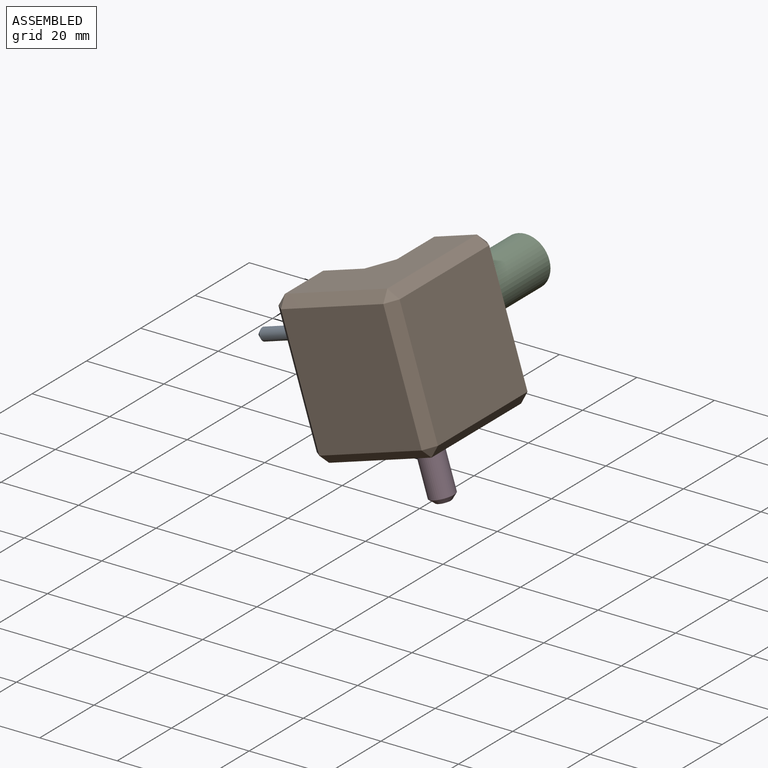
[diagram: assembled view]
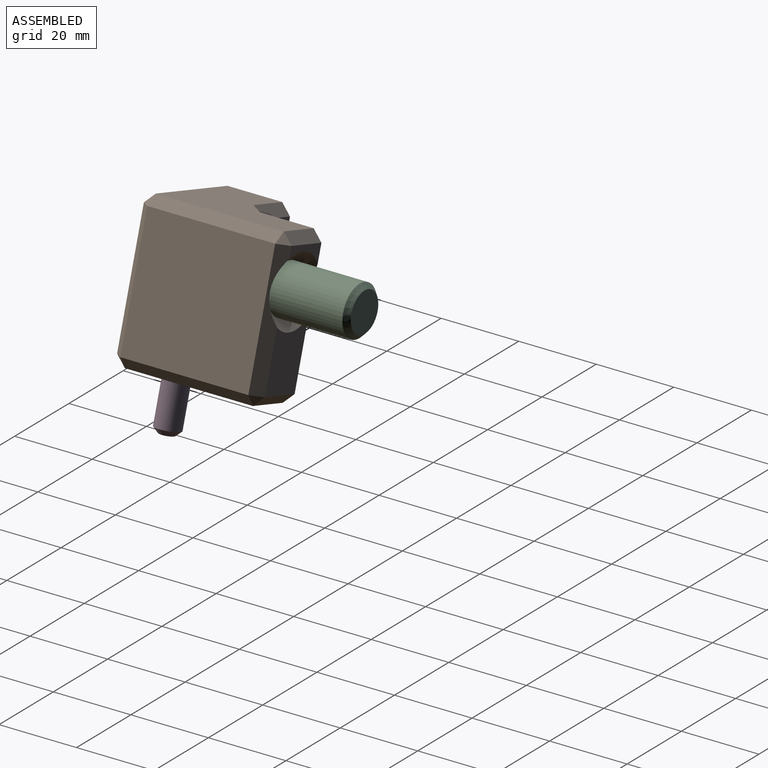
[diagram: assembled view, second angle]
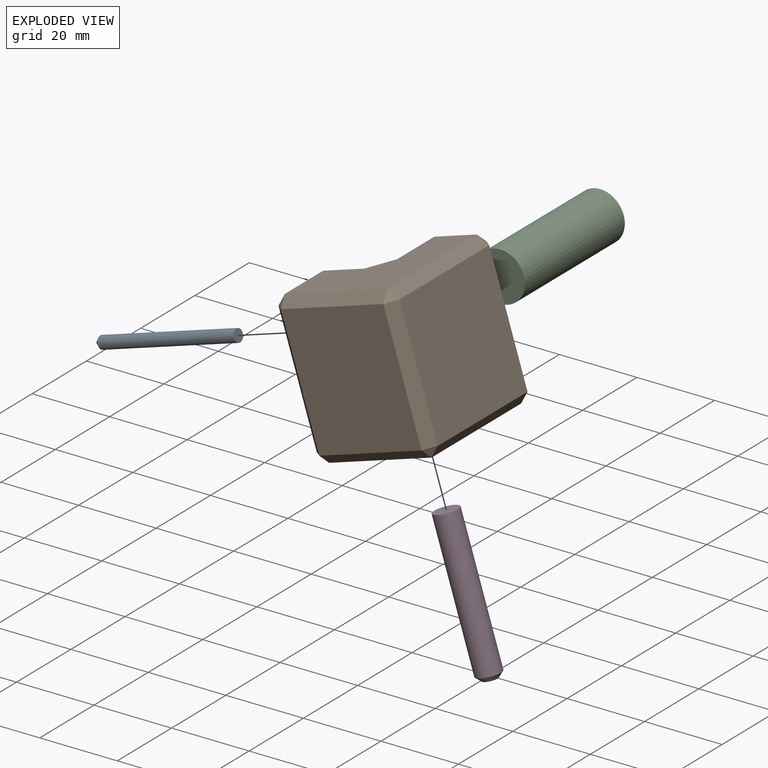
[diagram: exploded view]
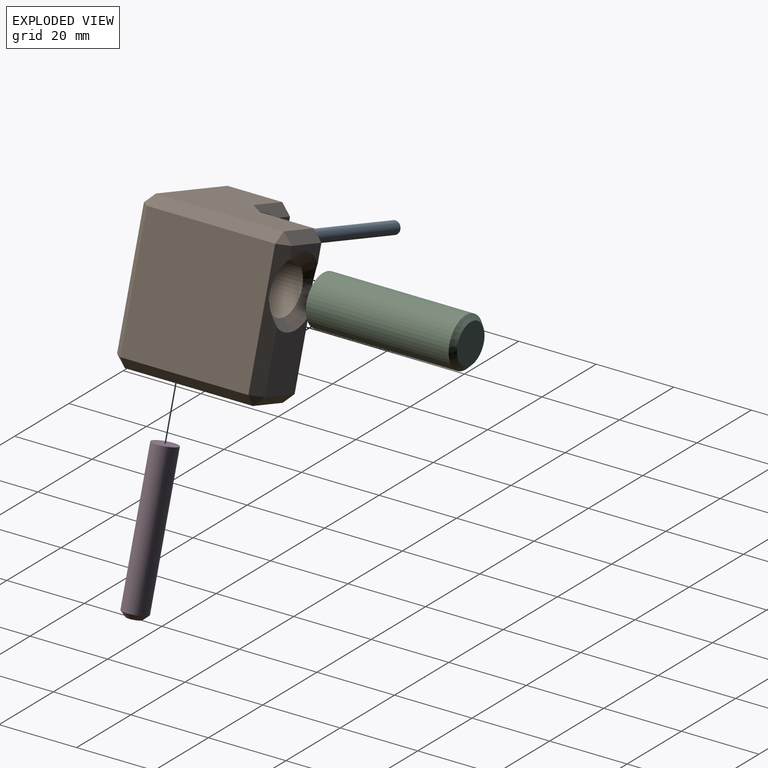
[diagram: exploded view, second angle]
ASSEMBLY  parts=4 mates=3
PART A: 4 faces, bbox 3.2x38.1x3.2 mm
  f0: cylinder r=1.59mm len=36.83mm, axis (0,1,0), area 367.4mm2, adj f1,f3
  f1: plane 3.18x3.18mm, normal (0,-1,0), area 7.9mm2, adj f0
  f2: plane 0.64x0.64mm, normal (0,1,0), area 0.3mm2, adj f3
  f3: cone r=1.59mm half-angle=45deg, axis (0,-1,0), area 10.7mm2, adj f0,f2
PART B: 48 faces, bbox 34.3x38.1x38.1 mm
  f0: plane 11.51x4.51mm, normal (0,0,1), area 24.9mm2, adj f20,f26,f30,f31
  f1: plane 33.02x27.67mm, normal (0,1,0), area 518.4mm2, adj f17,f21,f22,f32,f33,f41,f42,f47
  f2: plane 16.91x11.51mm, normal (0,0,1), area 167.5mm2, adj f20,f26,f31,f32
  f3: plane 33.02x27.67mm, normal (0,0,-1), area 913.5mm2, adj f34,f39,f42,f45
  f4: plane 33.02x33.02mm, normal (1,0,0), area 1090.3mm2, adj f31,f40,f41,f45
  f5: plane 33.02x14.11mm, normal (-1,0,0), area 412.5mm2, adj f23,f29,f33,f34,f46
  f6: plane 33.02x27.67mm, normal (0,-1,0), area 621mm2, adj f16,f18,f19,f29,f30,f39,f40
  f7: plane 33.02x13.83mm, normal (-1,0,0), area 456.5mm2, adj f15,f19,f20,f21
  f8: plane 33.02x11.08mm, normal (0,0,1), area 365.7mm2, adj f15,f18,f22,f23
  f9: cylinder r=3.17mm len=22.86mm, axis (0,1,0), area 456mm2, adj f10,f47
  f10: plane 6.35x6.35mm, normal (0,1,0), area 31.7mm2, adj f9
  f11: cylinder r=6.35mm len=17.78mm, axis (0,0,1), area 709.4mm2, adj f12,f26
  f12: plane 12.7x12.7mm, normal (0,0,1), area 126.7mm2, adj f11
  f13: cylinder r=1.59mm len=22.86mm, axis (-1,0,0), area 228mm2, adj f14,f46
  f14: plane 3.18x3.18mm, normal (-1,0,0), area 7.9mm2, adj f13
  f15: plane 33.02x2.54mm, normal (-0.71,0,0.71), area 118.6mm2, adj f7,f8,f16,f17
  f16: plane 5.08x5.08mm, normal (-0.58,-0.58,0.58), area 16.8mm2, adj f6,f15,f18,f19
  f17: plane 5.08x5.08mm, normal (-0.58,0.58,0.58), area 16.8mm2, adj f1,f15,f21,f22
  f18: plane 11.08x2.54mm, normal (0,-0.71,0.71), area 39.8mm2, adj f6,f8,f16,f24
  f19: plane 13.83x2.54mm, normal (-0.71,-0.71,0), area 49.7mm2, adj f6,f7,f16,f25
  f20: plane 33.02x2.54mm, normal (-0.71,0,0.71), area 106.8mm2, adj f0,f2,f7,f25,f26,f27
  f21: plane 13.83x2.54mm, normal (-0.71,0.71,0), area 49.7mm2, adj f1,f7,f17,f27
  f22: plane 11.08x2.54mm, normal (0,0.71,0.71), area 39.8mm2, adj f1,f8,f17,f28
  f23: plane 33.02x2.54mm, normal (-0.71,0,0.71), area 118.6mm2, adj f5,f8,f24,f28
  f24: plane 2.54x2.54mm, normal (-0.58,-0.58,0.58), area 5.6mm2, adj f18,f23,f29
  f25: plane 2.54x2.54mm, normal (-0.58,-0.58,0.58), area 5.6mm2, adj f19,f20,f30
  f26: cone r=6.35mm half-angle=45deg, axis (0,0,1), area 127.1mm2, adj f0,f2,f11,f20,f31
  f27: plane 2.54x2.54mm, normal (-0.58,0.58,0.58), area 5.6mm2, adj f20,f21,f32
  f28: plane 2.54x2.54mm, normal (-0.58,0.58,0.58), area 5.6mm2, adj f22,f23,f33
  f29: plane 14.11x2.54mm, normal (-0.71,-0.71,0), area 50.7mm2, adj f5,f6,f24,f35
  f30: plane 11.51x2.54mm, normal (0,-0.71,0.71), area 41.3mm2, adj f0,f6,f25,f36
  f31: plane 33.02x2.54mm, normal (0.71,0,0.71), area 89.5mm2, adj f0,f2,f4,f26,f36,f37
  f32: plane 11.51x2.54mm, normal (0,0.71,0.71), area 41.3mm2, adj f1,f2,f27,f37
  f33: plane 14.11x2.54mm, normal (-0.71,0.71,0), area 50.7mm2, adj f1,f5,f28,f38
  f34: plane 33.02x2.54mm, normal (-0.71,0,-0.71), area 118.6mm2, adj f3,f5,f35,f38
  f35: plane 2.54x2.54mm, normal (-0.58,-0.58,-0.58), area 5.6mm2, adj f29,f34,f39
  f36: plane 2.54x2.54mm, normal (0.58,-0.58,0.58), area 5.6mm2, adj f30,f31,f40
  f37: plane 2.54x2.54mm, normal (0.58,0.58,0.58), area 5.6mm2, adj f31,f32,f41
  f38: plane 2.54x2.54mm, normal (-0.58,0.58,-0.58), area 5.6mm2, adj f33,f34,f42
  f39: plane 27.67x2.54mm, normal (0,-0.71,-0.71), area 99.4mm2, adj f3,f6,f35,f43
  f40: plane 33.02x2.54mm, normal (0.71,-0.71,0), area 118.6mm2, adj f4,f6,f36,f43
  f41: plane 33.02x2.54mm, normal (0.71,0.71,0), area 118.6mm2, adj f1,f4,f37,f44
  f42: plane 27.67x2.54mm, normal (0,0.71,-0.71), area 99.4mm2, adj f1,f3,f38,f44
  f43: plane 2.54x2.54mm, normal (0.58,-0.58,-0.58), area 5.6mm2, adj f39,f40,f45
  f44: plane 2.54x2.54mm, normal (0.58,0.58,-0.58), area 5.6mm2, adj f41,f42,f45
  f45: plane 33.02x2.54mm, normal (0.71,0,-0.71), area 118.6mm2, adj f3,f4,f43,f44
  f46: cone r=1.59mm half-angle=45deg, axis (-1,0,0), area 64.5mm2, adj f5,f13
  f47: cone r=3.17mm half-angle=45deg, axis (0,1,0), area 100.3mm2, adj f1,f9
PART C: 4 faces, bbox 12.7x38.1x12.7 mm
  f0: cylinder r=6.35mm len=36.83mm, axis (0,1,0), area 1469.5mm2, adj f2,f3
  f1: plane 10.16x10.16mm, normal (0,-1,0), area 81.1mm2, adj f3
  f2: plane 12.7x12.7mm, normal (0,1,0), area 126.7mm2, adj f0
  f3: cone r=5.08mm half-angle=45deg, axis (0,1,0), area 64.5mm2, adj f0,f1
PART D: 4 faces, bbox 6.4x38.1x6.4 mm
  f0: cylinder r=3.17mm len=36.83mm, axis (0,1,0), area 734.7mm2, adj f2,f3
  f1: plane 3.81x3.81mm, normal (0,-1,0), area 11.4mm2, adj f3
  f2: plane 6.35x6.35mm, normal (0,1,0), area 31.7mm2, adj f0
  f3: cone r=1.91mm half-angle=45deg, axis (0,1,0), area 28.7mm2, adj f0,f1
PLACE A rot(axis=(-0.7,0.7,-0.11),167.7deg) t=(25.38,-86.72,-45.46)mm
PLACE B rot(axis=(-0.98,-0.15,-0.15),91.3deg) t=(61.24,-76.92,-62.65)mm
PLACE C rot(axis=(-0.99,0,-0.15),180deg) t=(63.33,-78.19,-35.53)mm
PLACE D rot(axis=(0.98,-0.15,0.15),91.3deg) t=(60.1,-84.69,-36.38)mm
MATE fastened B.f9 <-> D.f0  axis (0.3,0,-0.95) through (60.1,-84.69,-36.38)mm
MATE fastened C.f0 <-> B.f11  axis (0,-1,0) through (62.33,-78.19,-35.85)mm
MATE fastened A.f0 <-> B.f13  axis (0.95,0,0.3) through (61.74,-86.72,-34.06)mm
